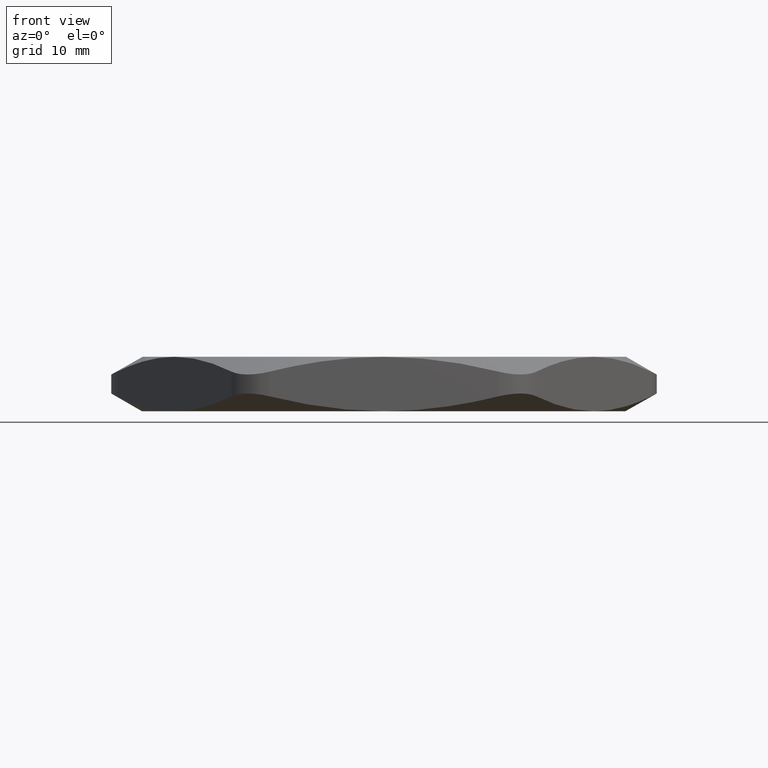
[diagram: clean part render]
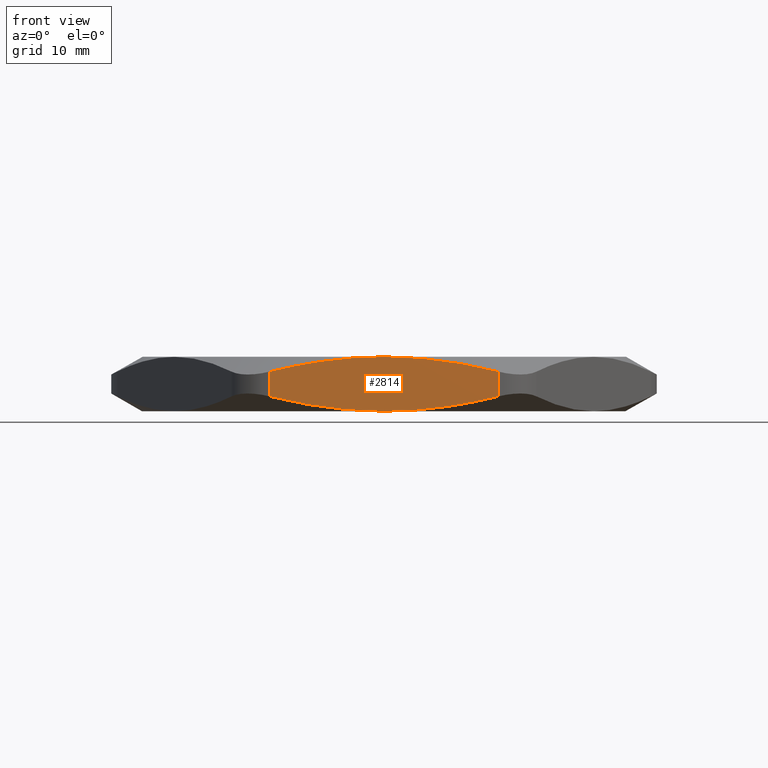
[diagram: same view with one face highlighted and labeled with its STEP entity id]
A machine part, front view. The second image highlights one B-rep face of the part: STEP entity #2814.
In plain terms, the highlighted planar face has unit normal (-0, 1, 0).
Its self-contained STEP definition (entity closure, byte-faithful):
#480 = CARTESIAN_POINT ( 'NONE',  ( -0.1099074967229244800, -1.379999999999999200, -3.997728729009666200E-016 ) ) ;
#980 = CARTESIAN_POINT ( 'NONE',  ( -0.2191816791453804200, -1.379999999999999400, 0.007672419723956248900 ) ) ;
#1467 = CARTESIAN_POINT ( 'NONE',  ( 2.365849761790802500E-016, -1.380000000000000100, 0.0000000000000000000 ) ) ;
#1469 = CARTESIAN_POINT ( 'NONE',  ( -0.6524058041842836200, -1.379999999999999400, 0.08454987016821083300 ) ) ;
#1470 = VECTOR ( 'NONE', #1479, 39.37007874015748100 ) ;
#1471 = CARTESIAN_POINT ( 'NONE',  ( 2.365849761790801000E-016, -1.379999999999999200, 0.3100000000000000000 ) ) ;
#1472 = CARTESIAN_POINT ( 'NONE',  ( -0.1099074967229245200, -1.379999999999999400, 0.3100000000000003900 ) ) ;
#1473 = CARTESIAN_POINT ( 'NONE',  ( -0.2191816791453806700, -1.379999999999999700, 0.3023275802760436200 ) ) ;
#1474 = CARTESIAN_POINT ( 'NONE',  ( -0.3822464863796540800, -1.379999999999999400, 0.2805642548878928800 ) ) ;
#1475 = CARTESIAN_POINT ( 'NONE',  ( -0.4364618021664497000, -1.379999999999999200, 0.2716183576509410600 ) ) ;
#1476 = CARTESIAN_POINT ( 'NONE',  ( -0.5446424934511037200, -1.379999999999999400, 0.2506986088086787200 ) ) ;
#1477 = CARTESIAN_POINT ( 'NONE',  ( -0.5987206088999214000, -1.379999999999999200, 0.2386975301094061100 ) ) ;
#1478 = CARTESIAN_POINT ( 'NONE',  ( -0.6524058041842836200, -1.379999999999999400, 0.2254501298317891400 ) ) ;
#1479 = DIRECTION ( 'NONE',  ( 0.0000000000000000000, 0.0000000000000000000, -1.000000000000000000 ) ) ;
#1480 = CARTESIAN_POINT ( 'NONE',  ( -0.6524058041842775200, -1.379999999999999400, 0.3100000000000000000 ) ) ;
#1481 = LINE ( 'NONE', #1480, #1470 ) ;
#1492 = B_SPLINE_CURVE_WITH_KNOTS ( 'NONE', 3,
 ( #1478, #1477, #1476, #1475, #1474, #1473, #1472, #1471 ),
 .UNSPECIFIED., .F., .F.,
 ( 4, 2, 2, 4 ),
 ( 0.04061174981613695900, 0.04478876854507062000, 0.04896578727400428800, 0.05731982473187161700 ),
 .UNSPECIFIED. ) ;
#1494 = DIRECTION ( 'NONE',  ( -1.000000000000000000, -1.714383885355653900E-016, 0.0000000000000000000 ) ) ;
#1495 = DIRECTION ( 'NONE',  ( -1.714383885355653900E-016, 1.000000000000000000, 0.0000000000000000000 ) ) ;
#1506 = PLANE ( 'NONE',  #1509 ) ;
#1507 = CARTESIAN_POINT ( 'NONE',  ( -0.7967433714816840600, -1.379999999999999400, 0.3100000000000000000 ) ) ;
#1509 = AXIS2_PLACEMENT_3D ( 'NONE', #1507, #1495, #1494 ) ;
#1510 = FACE_OUTER_BOUND ( 'NONE', #2815, .T. ) ;
#1520 = CARTESIAN_POINT ( 'NONE',  ( 0.5463956899380746400, -1.379999999999999400, 0.2516092675504240100 ) ) ;
#1521 = CARTESIAN_POINT ( 'NONE',  ( 0.4390883824316807500, -1.379999999999999400, 0.2728876917377843800 ) ) ;
#1522 = CARTESIAN_POINT ( 'NONE',  ( 0.3027508877481482300, -1.379999999999999400, 0.2911955382629420900 ) ) ;
#1523 = CARTESIAN_POINT ( 'NONE',  ( 0.2753731976033145800, -1.379999999999999700, 0.2944425111180538100 ) ) ;
#1524 = CARTESIAN_POINT ( 'NONE',  ( 0.2203836414870300200, -1.379999999999999000, 0.3000553659679265900 ) ) ;
#1525 = CARTESIAN_POINT ( 'NONE',  ( 0.1927219548984326600, -1.379999999999999200, 0.3024236135900573700 ) ) ;
#1526 = CARTESIAN_POINT ( 'NONE',  ( 0.1099260653720999200, -1.379999999999999200, 0.3081028583873311500 ) ) ;
#1527 = CARTESIAN_POINT ( 'NONE',  ( 0.05488473359941601500, -1.379999999999999200, 0.3100000000000002200 ) ) ;
#1528 = CARTESIAN_POINT ( 'NONE',  ( 2.365849761790801000E-016, -1.379999999999999200, 0.3100000000000000000 ) ) ;
#1529 = CARTESIAN_POINT ( 'NONE',  ( 2.365849761790801000E-016, -1.379999999999999200, 0.3100000000000000000 ) ) ;
#1530 = B_SPLINE_CURVE_WITH_KNOTS ( 'NONE', 3,
 ( #1528, #1527, #1526, #1525, #1524, #1523, #1522, #1521, #1520, #1578 ),
 .UNSPECIFIED., .F., .F.,
 ( 4, 2, 2, 2, 4 ),
 ( 0.05731982473187161700, 0.06149159766843920200, 0.06357748413672299800, 0.06566337060500677900, 0.07400691647814194900 ),
 .UNSPECIFIED. ) ;
#1531 = CARTESIAN_POINT ( 'NONE',  ( -0.6524058041842836200, -1.379999999999999400, 0.2254501298317891400 ) ) ;
#1532 = CARTESIAN_POINT ( 'NONE',  ( 0.6524058041842769600, -1.379999999999999200, 0.2254501298317908300 ) ) ;
#1533 = DIRECTION ( 'NONE',  ( 0.0000000000000000000, 0.0000000000000000000, 1.000000000000000000 ) ) ;
#1534 = VECTOR ( 'NONE', #1533, 39.37007874015748100 ) ;
#1535 = CARTESIAN_POINT ( 'NONE',  ( 0.6524058041842769600, -1.379999999999999200, 0.3100000000000000000 ) ) ;
#1536 = LINE ( 'NONE', #1535, #1534 ) ;
#1537 = CARTESIAN_POINT ( 'NONE',  ( 2.365849761790802500E-016, -1.380000000000000100, 0.0000000000000000000 ) ) ;
#1538 = CARTESIAN_POINT ( 'NONE',  ( 0.05488473359941606300, -1.379999999999999400, -3.916360209667127200E-016 ) ) ;
#1539 = CARTESIAN_POINT ( 'NONE',  ( 0.1099260653721002400, -1.379999999999999700, 0.001897141612668849000 ) ) ;
#1540 = CARTESIAN_POINT ( 'NONE',  ( 0.1927219548984330200, -1.379999999999999000, 0.007576386409942495800 ) ) ;
#1541 = CARTESIAN_POINT ( 'NONE',  ( 0.2203836414870296900, -1.379999999999999200, 0.009944634032073329200 ) ) ;
#1542 = CARTESIAN_POINT ( 'NONE',  ( 0.2753731976033141300, -1.379999999999999200, 0.01555748888194617500 ) ) ;
#1543 = CARTESIAN_POINT ( 'NONE',  ( 0.3027508877481483500, -1.379999999999999700, 0.01880446173705791600 ) ) ;
#1544 = CARTESIAN_POINT ( 'NONE',  ( 0.4390883824316810800, -1.379999999999999400, 0.03711230826221562100 ) ) ;
#1545 = CARTESIAN_POINT ( 'NONE',  ( 0.5463956899380746400, -1.379999999999999200, 0.05839073244957611300 ) ) ;
#1546 = CARTESIAN_POINT ( 'NONE',  ( 0.6524058041842769600, -1.379999999999999200, 0.08454987016820915400 ) ) ;
#1547 = CARTESIAN_POINT ( 'NONE',  ( 2.365849761790802500E-016, -1.380000000000000100, 0.0000000000000000000 ) ) ;
#1548 = B_SPLINE_CURVE_WITH_KNOTS ( 'NONE', 3,
 ( #1546, #1545, #1544, #1543, #1542, #1541, #1540, #1539, #1538, #1537 ),
 .UNSPECIFIED., .F., .F.,
 ( 4, 2, 2, 2, 4 ),
 ( 0.09478620208920404700, 0.1031357163977310200, 0.1052230949748627600, 0.1073104735519945100, 0.1114852307062579900 ),
 .UNSPECIFIED. ) ;
#1549 = CARTESIAN_POINT ( 'NONE',  ( 0.6524058041842769600, -1.379999999999999200, 0.08454987016820915400 ) ) ;
#1578 = CARTESIAN_POINT ( 'NONE',  ( 0.6524058041842769600, -1.379999999999999200, 0.2254501298317908300 ) ) ;
#2798 = ORIENTED_EDGE ( 'NONE', *, *, #2799, .F. ) ;
#2799 = EDGE_CURVE ( 'NONE', #2826, #2825, #1492, .T. ) ;
#2800 = ORIENTED_EDGE ( 'NONE', *, *, #2801, .T. ) ;
#2801 = EDGE_CURVE ( 'NONE', #2826, #2802, #1481, .T. ) ;
#2802 = VERTEX_POINT ( 'NONE', #1469 ) ;
#2803 = ORIENTED_EDGE ( 'NONE', *, *, #2804, .F. ) ;
#2804 = EDGE_CURVE ( 'NONE', #2819, #2802, #2976, .T. ) ;
#2814 = ADVANCED_FACE ( 'NONE', ( #1510 ), #1506, .F. ) ;
#2815 = EDGE_LOOP ( 'NONE', ( #2816, #2820, #2823, #2798, #2800, #2803 ) ) ;
#2816 = ORIENTED_EDGE ( 'NONE', *, *, #2817, .F. ) ;
#2817 = EDGE_CURVE ( 'NONE', #2818, #2819, #1548, .T. ) ;
#2818 = VERTEX_POINT ( 'NONE', #1549 ) ;
#2819 = VERTEX_POINT ( 'NONE', #1547 ) ;
#2820 = ORIENTED_EDGE ( 'NONE', *, *, #2821, .T. ) ;
#2821 = EDGE_CURVE ( 'NONE', #2818, #2822, #1536, .T. ) ;
#2822 = VERTEX_POINT ( 'NONE', #1532 ) ;
#2823 = ORIENTED_EDGE ( 'NONE', *, *, #2824, .F. ) ;
#2824 = EDGE_CURVE ( 'NONE', #2825, #2822, #1530, .T. ) ;
#2825 = VERTEX_POINT ( 'NONE', #1529 ) ;
#2826 = VERTEX_POINT ( 'NONE', #1531 ) ;
#2967 = CARTESIAN_POINT ( 'NONE',  ( -0.4364618021664489200, -1.379999999999999400, 0.03838164234905878200 ) ) ;
#2968 = CARTESIAN_POINT ( 'NONE',  ( -0.3822464863796539700, -1.379999999999999700, 0.02943574511210693400 ) ) ;
#2969 = CARTESIAN_POINT ( 'NONE',  ( -0.5446424934511032700, -1.379999999999999700, 0.05930139119132112100 ) ) ;
#2972 = CARTESIAN_POINT ( 'NONE',  ( -0.5987206088999214000, -1.379999999999999700, 0.07130246989059366200 ) ) ;
#2974 = CARTESIAN_POINT ( 'NONE',  ( -0.6524058041842836200, -1.379999999999999400, 0.08454987016821083300 ) ) ;
#2976 = B_SPLINE_CURVE_WITH_KNOTS ( 'NONE', 3,
 ( #1467, #480, #980, #2968, #2967, #2969, #2972, #2974 ),
 .UNSPECIFIED., .F., .F.,
 ( 4, 2, 2, 4 ),
 ( 0.1114852307062579900, 0.1198452441045211700, 0.1240252508036527600, 0.1282052575027843600 ),
 .UNSPECIFIED. ) ;